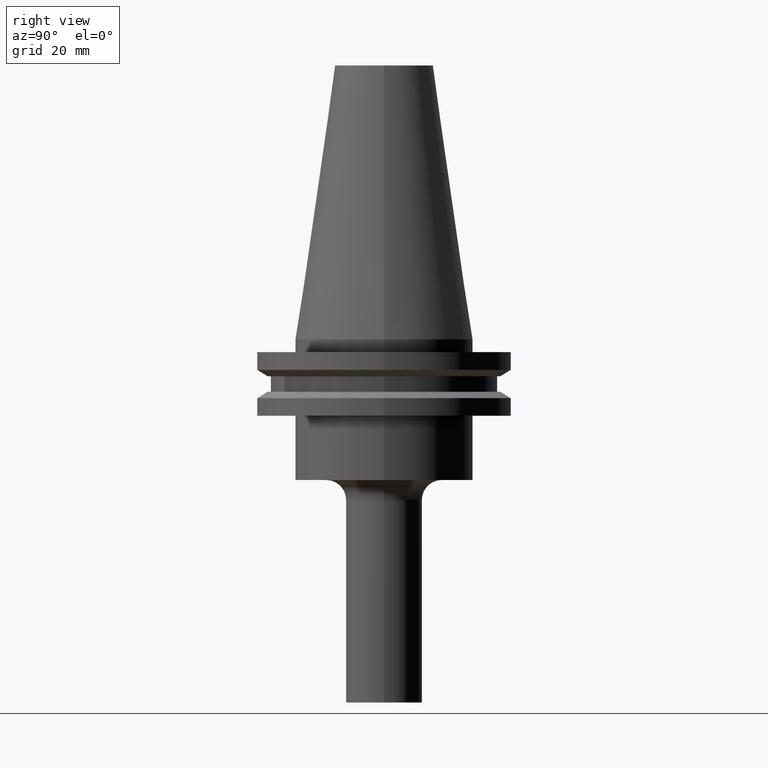
[diagram: clean part render]
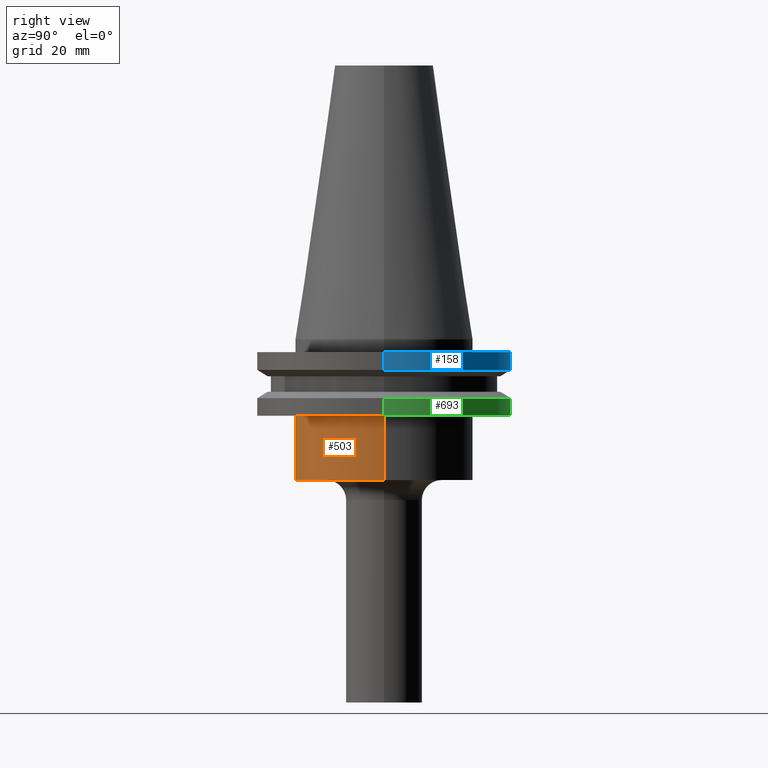
[diagram: same view with three faces highlighted in distinct colors, each labeled with its STEP entity id]
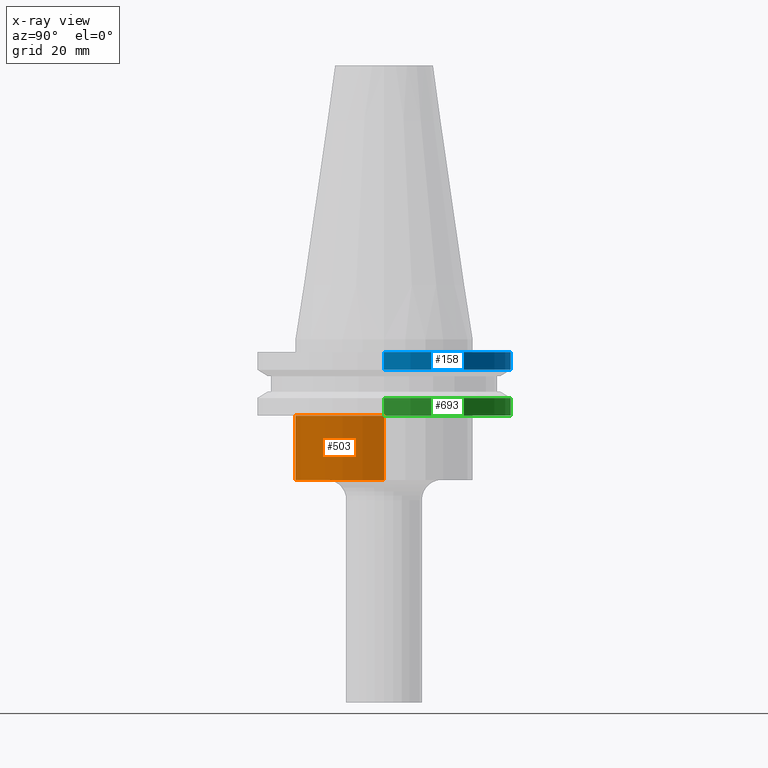
[diagram: x-ray of the same camera — body ghosted, the three highlighted faces saturated]
A machine part, right view with three faces highlighted in distinct colors.
The next image is the same camera in x-ray (body ghosted, the three faces saturated) — at least one of them is partly hidden behind the body in this view.
Their STEP definitions:

[orange] entity #503 — the highlighted cylindrical surface (partial cylindrical patch) has radius 22.225 mm, axis along (-0, -0, 1).
#10 = CARTESIAN_POINT ( 'NONE',  ( 22.22500000000000142, 0.000000000000000000, -35.04999999999999716 ) ) ;
#60 = VECTOR ( 'NONE', #698, 1000.000000000000000 ) ;
#80 = AXIS2_PLACEMENT_3D ( 'NONE', #701, #290, #774 ) ;
#89 = EDGE_CURVE ( 'NONE', #298, #422, #696, .T. ) ;
#92 = DIRECTION ( 'NONE',  ( -0.000000000000000000, -0.000000000000000000, 1.000000000000000000 ) ) ;
#104 = EDGE_CURVE ( 'NONE', #666, #422, #686, .T. ) ;
#119 = ORIENTED_EDGE ( 'NONE', *, *, #89, .F. ) ;
#122 = AXIS2_PLACEMENT_3D ( 'NONE', #327, #92, #734 ) ;
#130 = AXIS2_PLACEMENT_3D ( 'NONE', #256, #552, #207 ) ;
#142 = CARTESIAN_POINT ( 'NONE',  ( 22.22500000000000142, 0.000000000000000000, 68.25000000000000000 ) ) ;
#163 = CARTESIAN_POINT ( 'NONE',  ( -22.22500000000000142, 2.721777511104992849E-15, 68.25000000000000000 ) ) ;
#179 = VECTOR ( 'NONE', #395, 1000.000000000000000 ) ;
#207 = DIRECTION ( 'NONE',  ( 1.000000000000000000, 0.000000000000000000, 0.000000000000000000 ) ) ;
#256 = CARTESIAN_POINT ( 'NONE',  ( 0.000000000000000000, 0.000000000000000000, 68.25000000000000000 ) ) ;
#270 = CARTESIAN_POINT ( 'NONE',  ( 22.22500000000000142, 0.000000000000000000, -19.04999999999999716 ) ) ;
#281 = LINE ( 'NONE', #163, #60 ) ;
#290 = DIRECTION ( 'NONE',  ( -0.000000000000000000, -0.000000000000000000, 1.000000000000000000 ) ) ;
#298 = VERTEX_POINT ( 'NONE', #642 ) ;
#306 = EDGE_CURVE ( 'NONE', #521, #666, #576, .T. ) ;
#316 = CYLINDRICAL_SURFACE ( 'NONE', #130, 22.22500000000000142 ) ;
#318 = CARTESIAN_POINT ( 'NONE',  ( -22.22500000000000142, 2.721777511104992849E-15, -35.04999999999999716 ) ) ;
#325 = FACE_OUTER_BOUND ( 'NONE', #588, .T. ) ;
#327 = CARTESIAN_POINT ( 'NONE',  ( 0.000000000000000000, 0.000000000000000000, -19.04999999999999716 ) ) ;
#367 = ORIENTED_EDGE ( 'NONE', *, *, #306, .T. ) ;
#395 = DIRECTION ( 'NONE',  ( -0.000000000000000000, -0.000000000000000000, 1.000000000000000000 ) ) ;
#422 = VERTEX_POINT ( 'NONE', #270 ) ;
#503 = ADVANCED_FACE ( 'NONE', ( #325 ), #316, .T. ) ;
#521 = VERTEX_POINT ( 'NONE', #318 ) ;
#533 = ORIENTED_EDGE ( 'NONE', *, *, #104, .T. ) ;
#552 = DIRECTION ( 'NONE',  ( -0.000000000000000000, -0.000000000000000000, 1.000000000000000000 ) ) ;
#576 = CIRCLE ( 'NONE', #80, 22.22500000000000142 ) ;
#588 = EDGE_LOOP ( 'NONE', ( #653, #367, #533, #119 ) ) ;
#642 = CARTESIAN_POINT ( 'NONE',  ( -22.22500000000000142, 2.721777511104992849E-15, -19.04999999999999716 ) ) ;
#653 = ORIENTED_EDGE ( 'NONE', *, *, #746, .F. ) ;
#666 = VERTEX_POINT ( 'NONE', #10 ) ;
#686 = LINE ( 'NONE', #142, #179 ) ;
#696 = CIRCLE ( 'NONE', #122, 22.22500000000000142 ) ;
#698 = DIRECTION ( 'NONE',  ( -0.000000000000000000, -0.000000000000000000, 1.000000000000000000 ) ) ;
#701 = CARTESIAN_POINT ( 'NONE',  ( 0.000000000000000000, 0.000000000000000000, -35.04999999999999716 ) ) ;
#734 = DIRECTION ( 'NONE',  ( 1.000000000000000000, 0.000000000000000000, 0.000000000000000000 ) ) ;
#746 = EDGE_CURVE ( 'NONE', #521, #298, #281, .T. ) ;
#774 = DIRECTION ( 'NONE',  ( 1.000000000000000000, 0.000000000000000000, 0.000000000000000000 ) ) ;

[blue] entity #158 — the highlighted cylindrical surface (partial cylindrical patch) has radius 31.75 mm, axis along (-0, -0, 1).
#12 = DIRECTION ( 'NONE',  ( 1.000000000000000000, 0.000000000000000000, 0.000000000000000000 ) ) ;
#27 = DIRECTION ( 'NONE',  ( -0.000000000000000000, -0.000000000000000000, 1.000000000000000000 ) ) ;
#99 = FACE_OUTER_BOUND ( 'NONE', #363, .T. ) ;
#118 = ORIENTED_EDGE ( 'NONE', *, *, #511, .T. ) ;
#124 = EDGE_CURVE ( 'NONE', #577, #776, #729, .T. ) ;
#135 = CARTESIAN_POINT ( 'NONE',  ( 0.000000000000000000, 0.000000000000000000, -7.605276606597335842 ) ) ;
#147 = AXIS2_PLACEMENT_3D ( 'NONE', #451, #27, #398 ) ;
#158 = ADVANCED_FACE ( 'NONE', ( #99 ), #265, .T. ) ;
#178 = CARTESIAN_POINT ( 'NONE',  ( -31.75000000000000000, 3.888253587292846476E-15, 68.25000000000000000 ) ) ;
#191 = VECTOR ( 'NONE', #410, 1000.000000000000000 ) ;
#224 = DIRECTION ( 'NONE',  ( -0.000000000000000000, -0.000000000000000000, 1.000000000000000000 ) ) ;
#234 = VERTEX_POINT ( 'NONE', #699 ) ;
#265 = CYLINDRICAL_SURFACE ( 'NONE', #147, 31.75000000000000000 ) ;
#363 = EDGE_LOOP ( 'NONE', ( #118, #762, #643, #463 ) ) ;
#364 = EDGE_CURVE ( 'NONE', #234, #776, #704, .T. ) ;
#398 = DIRECTION ( 'NONE',  ( 1.000000000000000000, 0.000000000000000000, 0.000000000000000000 ) ) ;
#401 = CARTESIAN_POINT ( 'NONE',  ( 31.75000000000000000, 0.000000000000000000, -7.605276606597335842 ) ) ;
#410 = DIRECTION ( 'NONE',  ( -0.000000000000000000, -0.000000000000000000, 1.000000000000000000 ) ) ;
#437 = DIRECTION ( 'NONE',  ( -0.000000000000000000, -0.000000000000000000, 1.000000000000000000 ) ) ;
#442 = EDGE_CURVE ( 'NONE', #772, #577, #671, .T. ) ;
#451 = CARTESIAN_POINT ( 'NONE',  ( 0.000000000000000000, 0.000000000000000000, 68.25000000000000000 ) ) ;
#456 = CARTESIAN_POINT ( 'NONE',  ( 0.000000000000000000, 0.000000000000000000, -3.174999999999997158 ) ) ;
#463 = ORIENTED_EDGE ( 'NONE', *, *, #442, .F. ) ;
#475 = VECTOR ( 'NONE', #606, 1000.000000000000000 ) ;
#485 = AXIS2_PLACEMENT_3D ( 'NONE', #135, #437, #12 ) ;
#511 = EDGE_CURVE ( 'NONE', #772, #234, #718, .T. ) ;
#577 = VERTEX_POINT ( 'NONE', #615 ) ;
#606 = DIRECTION ( 'NONE',  ( -0.000000000000000000, -0.000000000000000000, 1.000000000000000000 ) ) ;
#615 = CARTESIAN_POINT ( 'NONE',  ( 31.75000000000000000, 0.000000000000000000, -3.174999999999997158 ) ) ;
#632 = CARTESIAN_POINT ( 'NONE',  ( -31.75000000000000000, 3.888253587292846476E-15, -3.174999999999997158 ) ) ;
#643 = ORIENTED_EDGE ( 'NONE', *, *, #124, .F. ) ;
#671 = LINE ( 'NONE', #727, #475 ) ;
#699 = CARTESIAN_POINT ( 'NONE',  ( -31.75000000000000000, 3.888253587292846476E-15, -7.605276606597335842 ) ) ;
#704 = LINE ( 'NONE', #178, #191 ) ;
#718 = CIRCLE ( 'NONE', #485, 31.75000000000000000 ) ;
#727 = CARTESIAN_POINT ( 'NONE',  ( 31.75000000000000000, 0.000000000000000000, 68.25000000000000000 ) ) ;
#729 = CIRCLE ( 'NONE', #757, 31.75000000000000000 ) ;
#736 = DIRECTION ( 'NONE',  ( 1.000000000000000000, 0.000000000000000000, 0.000000000000000000 ) ) ;
#757 = AXIS2_PLACEMENT_3D ( 'NONE', #456, #224, #736 ) ;
#762 = ORIENTED_EDGE ( 'NONE', *, *, #364, .T. ) ;
#772 = VERTEX_POINT ( 'NONE', #401 ) ;
#776 = VERTEX_POINT ( 'NONE', #632 ) ;

[green] entity #693 — the highlighted cylindrical surface (partial cylindrical patch) has radius 31.75 mm, axis along (-0, -0, 1).
#24 = DIRECTION ( 'NONE',  ( -0.000000000000000000, -0.000000000000000000, 1.000000000000000000 ) ) ;
#54 = ORIENTED_EDGE ( 'NONE', *, *, #182, .T. ) ;
#58 = EDGE_CURVE ( 'NONE', #297, #74, #534, .T. ) ;
#74 = VERTEX_POINT ( 'NONE', #331 ) ;
#106 = VECTOR ( 'NONE', #402, 1000.000000000000000 ) ;
#133 = DIRECTION ( 'NONE',  ( 1.000000000000000000, 0.000000000000000000, 0.000000000000000000 ) ) ;
#136 = EDGE_CURVE ( 'NONE', #353, #297, #750, .T. ) ;
#162 = AXIS2_PLACEMENT_3D ( 'NONE', #255, #424, #133 ) ;
#166 = ORIENTED_EDGE ( 'NONE', *, *, #136, .F. ) ;
#170 = LINE ( 'NONE', #470, #106 ) ;
#176 = ORIENTED_EDGE ( 'NONE', *, *, #348, .T. ) ;
#182 = EDGE_CURVE ( 'NONE', #353, #630, #740, .T. ) ;
#189 = CARTESIAN_POINT ( 'NONE',  ( 31.75000000000000000, 0.000000000000000000, -14.65472339340266572 ) ) ;
#209 = DIRECTION ( 'NONE',  ( 1.000000000000000000, 0.000000000000000000, 0.000000000000000000 ) ) ;
#211 = CARTESIAN_POINT ( 'NONE',  ( 31.75000000000000000, 0.000000000000000000, 68.25000000000000000 ) ) ;
#226 = VECTOR ( 'NONE', #445, 1000.000000000000000 ) ;
#254 = CARTESIAN_POINT ( 'NONE',  ( -31.74999999999999289, 3.888253587292845687E-15, -19.04999999999999716 ) ) ;
#255 = CARTESIAN_POINT ( 'NONE',  ( 0.000000000000000000, 0.000000000000000000, -14.65472339340266572 ) ) ;
#297 = VERTEX_POINT ( 'NONE', #189 ) ;
#331 = CARTESIAN_POINT ( 'NONE',  ( -31.75000000000000000, 3.888253587292846476E-15, -14.65472339340266572 ) ) ;
#348 = EDGE_CURVE ( 'NONE', #630, #74, #170, .T. ) ;
#353 = VERTEX_POINT ( 'NONE', #524 ) ;
#380 = DIRECTION ( 'NONE',  ( -0.000000000000000000, -0.000000000000000000, 1.000000000000000000 ) ) ;
#402 = DIRECTION ( 'NONE',  ( -0.000000000000000000, -0.000000000000000000, 1.000000000000000000 ) ) ;
#424 = DIRECTION ( 'NONE',  ( -0.000000000000000000, -0.000000000000000000, 1.000000000000000000 ) ) ;
#435 = AXIS2_PLACEMENT_3D ( 'NONE', #735, #380, #209 ) ;
#445 = DIRECTION ( 'NONE',  ( -0.000000000000000000, -0.000000000000000000, 1.000000000000000000 ) ) ;
#470 = CARTESIAN_POINT ( 'NONE',  ( -31.75000000000000000, 3.888253587292846476E-15, 68.25000000000000000 ) ) ;
#498 = FACE_OUTER_BOUND ( 'NONE', #530, .T. ) ;
#524 = CARTESIAN_POINT ( 'NONE',  ( 31.74999999999999289, 0.000000000000000000, -19.04999999999999716 ) ) ;
#530 = EDGE_LOOP ( 'NONE', ( #54, #176, #551, #166 ) ) ;
#534 = CIRCLE ( 'NONE', #162, 31.75000000000000000 ) ;
#551 = ORIENTED_EDGE ( 'NONE', *, *, #58, .F. ) ;
#572 = CARTESIAN_POINT ( 'NONE',  ( 0.000000000000000000, 0.000000000000000000, -19.04999999999999716 ) ) ;
#614 = CYLINDRICAL_SURFACE ( 'NONE', #435, 31.75000000000000000 ) ;
#630 = VERTEX_POINT ( 'NONE', #254 ) ;
#690 = DIRECTION ( 'NONE',  ( 1.000000000000000000, 0.000000000000000000, 0.000000000000000000 ) ) ;
#693 = ADVANCED_FACE ( 'NONE', ( #498 ), #614, .T. ) ;
#735 = CARTESIAN_POINT ( 'NONE',  ( 0.000000000000000000, 0.000000000000000000, 68.25000000000000000 ) ) ;
#740 = CIRCLE ( 'NONE', #747, 31.74999999999999289 ) ;
#747 = AXIS2_PLACEMENT_3D ( 'NONE', #572, #24, #690 ) ;
#750 = LINE ( 'NONE', #211, #226 ) ;